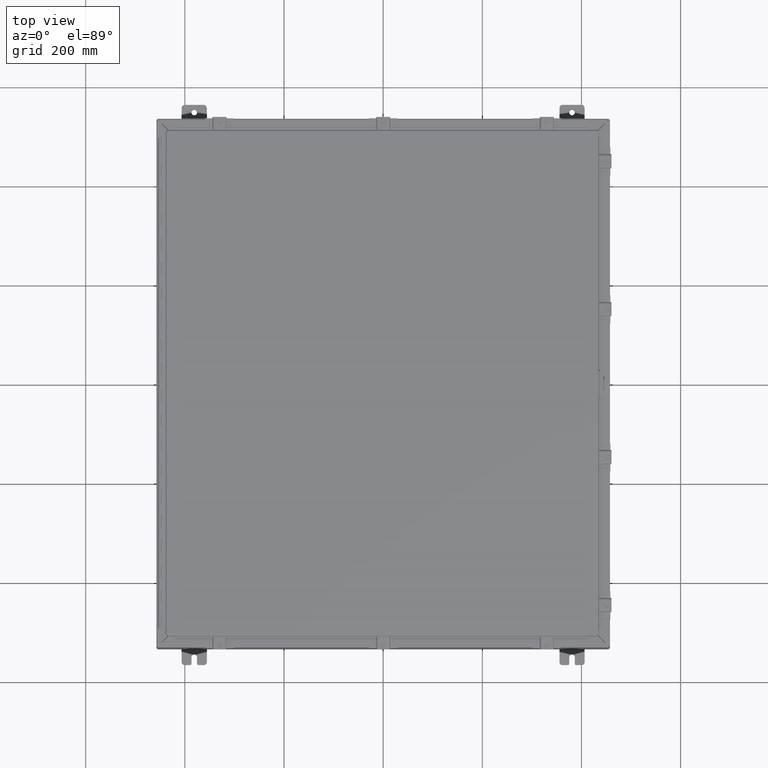
[diagram: clean part render]
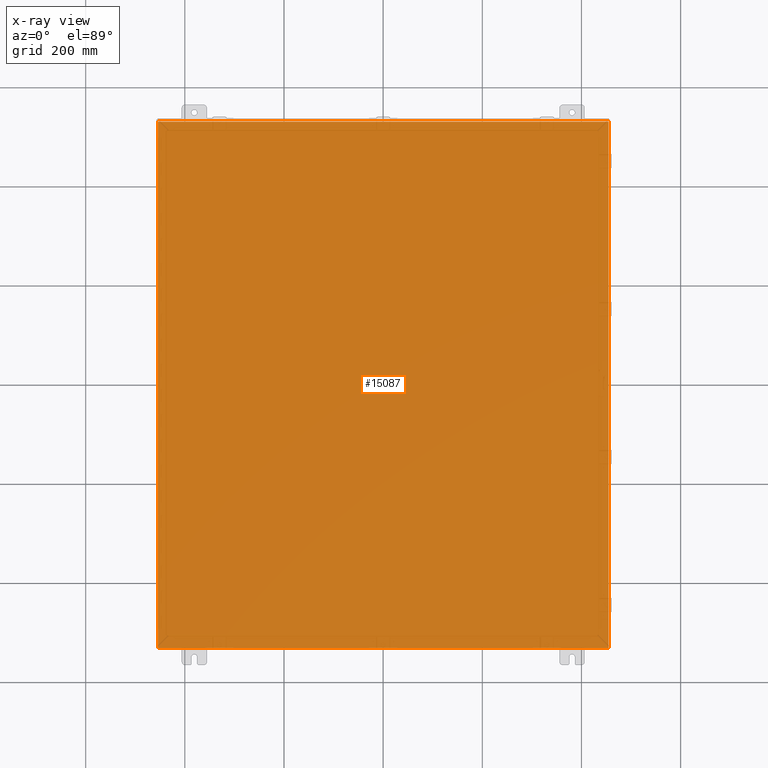
[diagram: x-ray — body ghosted, one internal face saturated and labeled with its STEP entity id]
A machine part, top view, then the same camera in x-ray: the body is ghosted and one INTERNAL B-rep face — a face not visible from any outside direction — is saturated and labeled: STEP entity #15087.
In plain terms, the highlighted planar face has unit normal (0, 0, 1).
Its self-contained STEP definition (entity closure, byte-faithful):
#1380=PLANE('',#15987);
#1870=FACE_OUTER_BOUND('',#2721,.T.);
#2721=EDGE_LOOP('',(#10732,#10733,#10734,#10735));
#3637=LINE('',#21672,#5057);
#3638=LINE('',#21690,#5058);
#3639=LINE('',#21691,#5059);
#3640=LINE('',#21692,#5060);
#5057=VECTOR('',#17488,41.7895);
#5058=VECTOR('',#17491,41.7895);
#5059=VECTOR('',#17492,35.7895);
#5060=VECTOR('',#17493,35.7895);
#7011=VERTEX_POINT('',#21670);
#7012=VERTEX_POINT('',#21671);
#7013=VERTEX_POINT('',#21688);
#7014=VERTEX_POINT('',#21689);
#8462=EDGE_CURVE('',#7011,#7012,#3637,.T.);
#8465=EDGE_CURVE('',#7013,#7014,#3638,.T.);
#8466=EDGE_CURVE('',#7014,#7011,#3639,.T.);
#8467=EDGE_CURVE('',#7012,#7013,#3640,.T.);
#10732=ORIENTED_EDGE('',*,*,#8465,.T.);
#10733=ORIENTED_EDGE('',*,*,#8466,.T.);
#10734=ORIENTED_EDGE('',*,*,#8462,.T.);
#10735=ORIENTED_EDGE('',*,*,#8467,.T.);
#15087=ADVANCED_FACE('',(#1870),#1380,.T.);
#15987=AXIS2_PLACEMENT_3D('',#21687,#17489,#17490);
#17488=DIRECTION('',(1.33881111069154E-16,-1.,0.));
#17489=DIRECTION('center_axis',(0.,0.,1.));
#17490=DIRECTION('ref_axis',(1.,0.,0.));
#17491=DIRECTION('',(0.,1.,0.));
#17492=DIRECTION('',(-1.,0.,0.));
#17493=DIRECTION('',(1.,1.56325869068425E-16,0.));
#21670=CARTESIAN_POINT('',(-17.89475,20.89475,0.074));
#21671=CARTESIAN_POINT('',(-17.89475,-20.89475,0.074));
#21672=CARTESIAN_POINT('',(-17.89475,-10.447375,0.074));
#21687=CARTESIAN_POINT('Origin',(-4.19611851826831E-15,3.48209368881939E-15,
0.074));
#21688=CARTESIAN_POINT('',(17.89475,-20.89475,0.074));
#21689=CARTESIAN_POINT('',(17.89475,20.89475,0.074));
#21690=CARTESIAN_POINT('',(17.89475,10.447375,0.074));
#21691=CARTESIAN_POINT('',(-8.947375,20.89475,0.074));
#21692=CARTESIAN_POINT('',(8.947375,-20.89475,0.074));